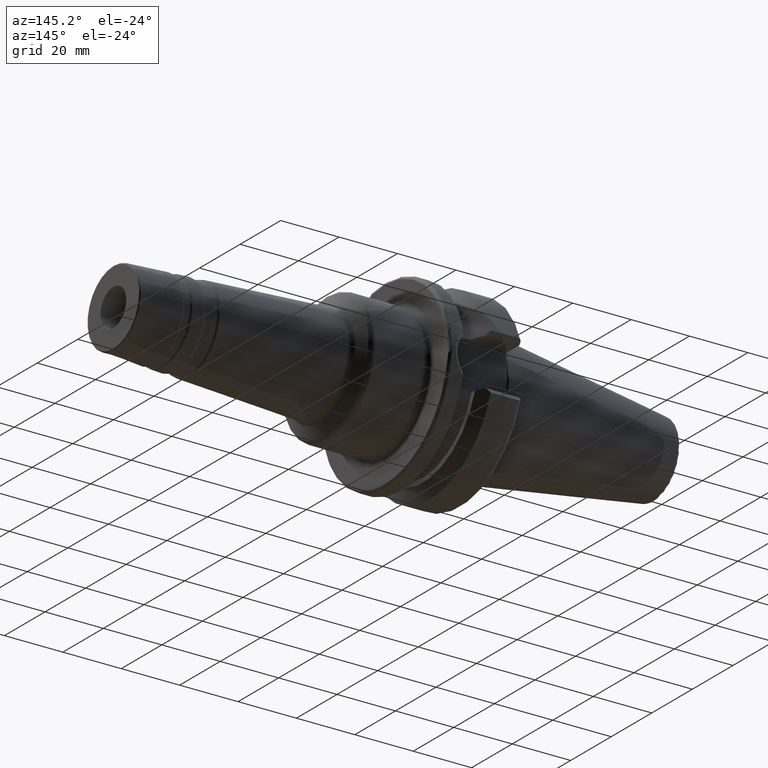
[diagram: clean part render]
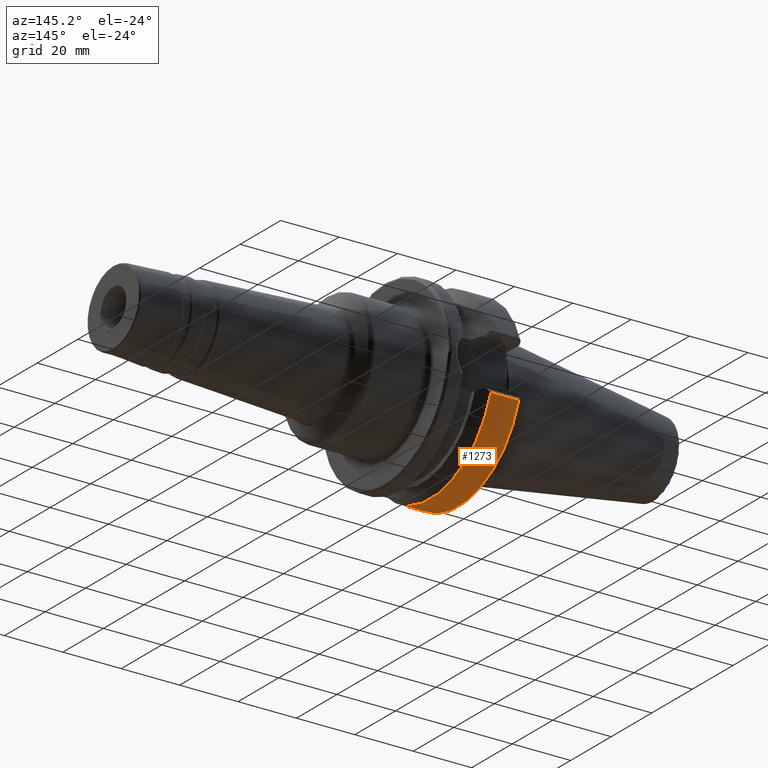
[diagram: same view with one face highlighted and labeled with its STEP entity id]
A machine part, auxiliary view. The second image highlights one B-rep face of the part: STEP entity #1273.
In plain terms, the highlighted cylindrical surface (partial cylindrical patch) has radius 31.5 mm, axis along (1, 0, 0).
Its self-contained STEP definition (entity closure, byte-faithful):
#55=CYLINDRICAL_SURFACE('',#1426,31.5);
#111=LINE('',#2205,#180);
#114=LINE('',#2217,#183);
#180=VECTOR('',#1698,10.);
#183=VECTOR('',#1705,10.);
#289=FACE_OUTER_BOUND('',#374,.T.);
#374=EDGE_LOOP('',(#971,#972,#973,#974));
#473=CIRCLE('',#1427,31.5);
#474=CIRCLE('',#1428,31.5000000000001);
#562=VERTEX_POINT('',#2193);
#563=VERTEX_POINT('',#2204);
#566=VERTEX_POINT('',#2214);
#567=VERTEX_POINT('',#2216);
#711=EDGE_CURVE('',#562,#563,#111,.T.);
#715=EDGE_CURVE('',#562,#566,#473,.T.);
#716=EDGE_CURVE('',#567,#566,#114,.T.);
#717=EDGE_CURVE('',#563,#567,#474,.T.);
#971=ORIENTED_EDGE('',*,*,#711,.F.);
#972=ORIENTED_EDGE('',*,*,#715,.T.);
#973=ORIENTED_EDGE('',*,*,#716,.F.);
#974=ORIENTED_EDGE('',*,*,#717,.F.);
#1273=ADVANCED_FACE('',(#289),#55,.T.);
#1426=AXIS2_PLACEMENT_3D('',#2213,#1701,#1702);
#1427=AXIS2_PLACEMENT_3D('',#2215,#1703,#1704);
#1428=AXIS2_PLACEMENT_3D('',#2218,#1706,#1707);
#1698=DIRECTION('',(1.,0.,0.));
#1701=DIRECTION('center_axis',(1.,0.,0.));
#1702=DIRECTION('ref_axis',(0.,1.,0.));
#1703=DIRECTION('center_axis',(1.,0.,0.));
#1704=DIRECTION('ref_axis',(0.,0.,-1.));
#1705=DIRECTION('',(-1.,0.,0.));
#1706=DIRECTION('center_axis',(1.,0.,0.));
#1707=DIRECTION('ref_axis',(0.,0.,-1.));
#2193=CARTESIAN_POINT('',(1.99999999999999,-30.0059801089944,-9.58598757033586));
#2204=CARTESIAN_POINT('',(11.5690363073381,-30.0059801089944,-9.58598757033588));
#2205=CARTESIAN_POINT('',(6.78451815366905,-30.0059801089944,-9.58598757033587));
#2213=CARTESIAN_POINT('Origin',(6.78451815366905,0.,0.));
#2214=CARTESIAN_POINT('',(1.99999999999999,30.0059801089944,-9.58598757033586));
#2215=CARTESIAN_POINT('Origin',(1.99999999999999,0.,0.));
#2216=CARTESIAN_POINT('',(11.5690363073381,30.0059801089944,-9.58598757033588));
#2217=CARTESIAN_POINT('',(6.78451815366905,30.0059801089944,-9.58598757033587));
#2218=CARTESIAN_POINT('Origin',(11.5690363073381,0.,0.));